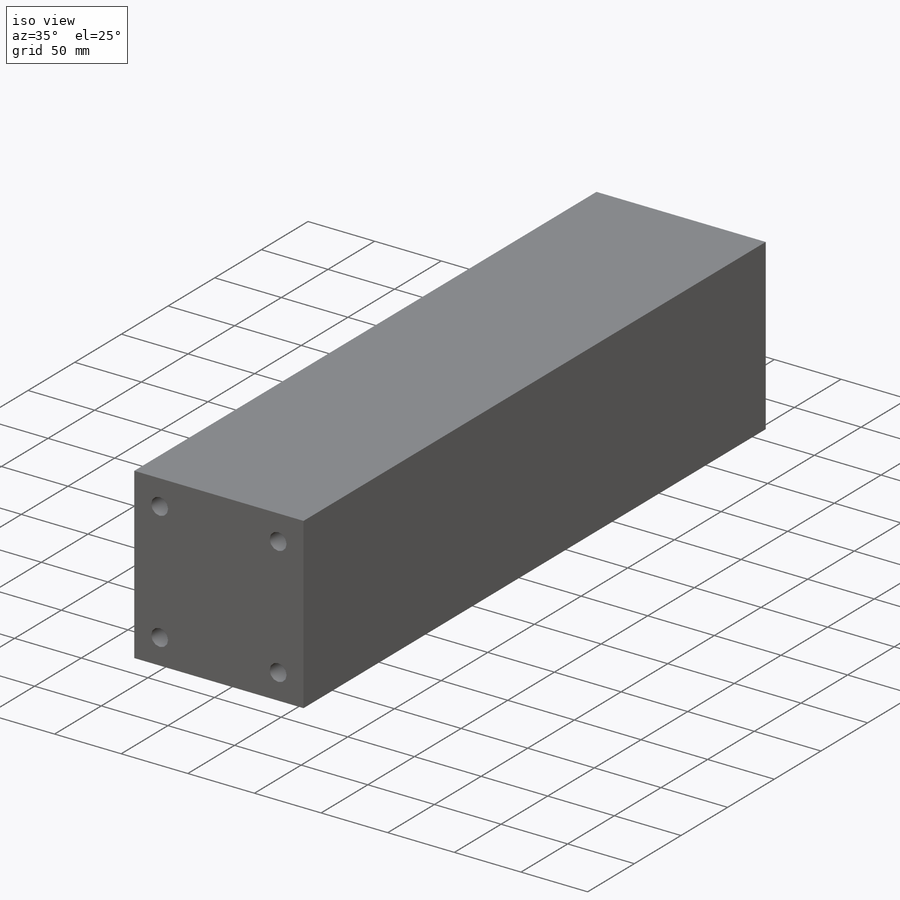
[diagram: iso view]
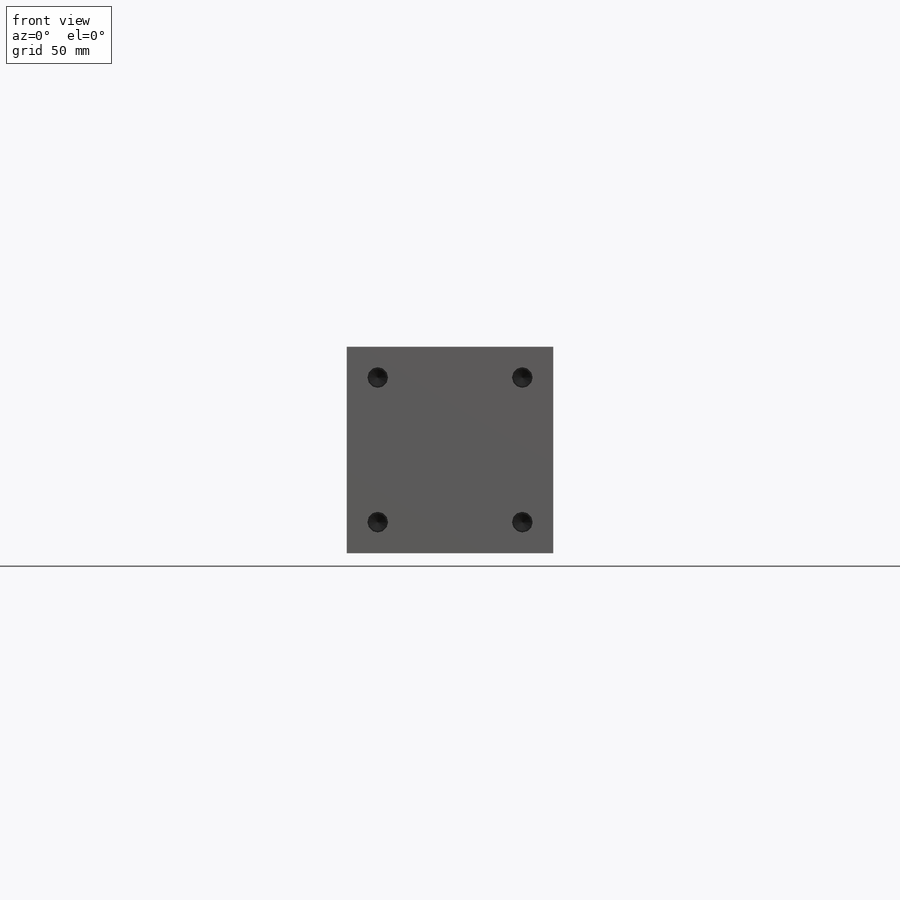
[diagram: front view]
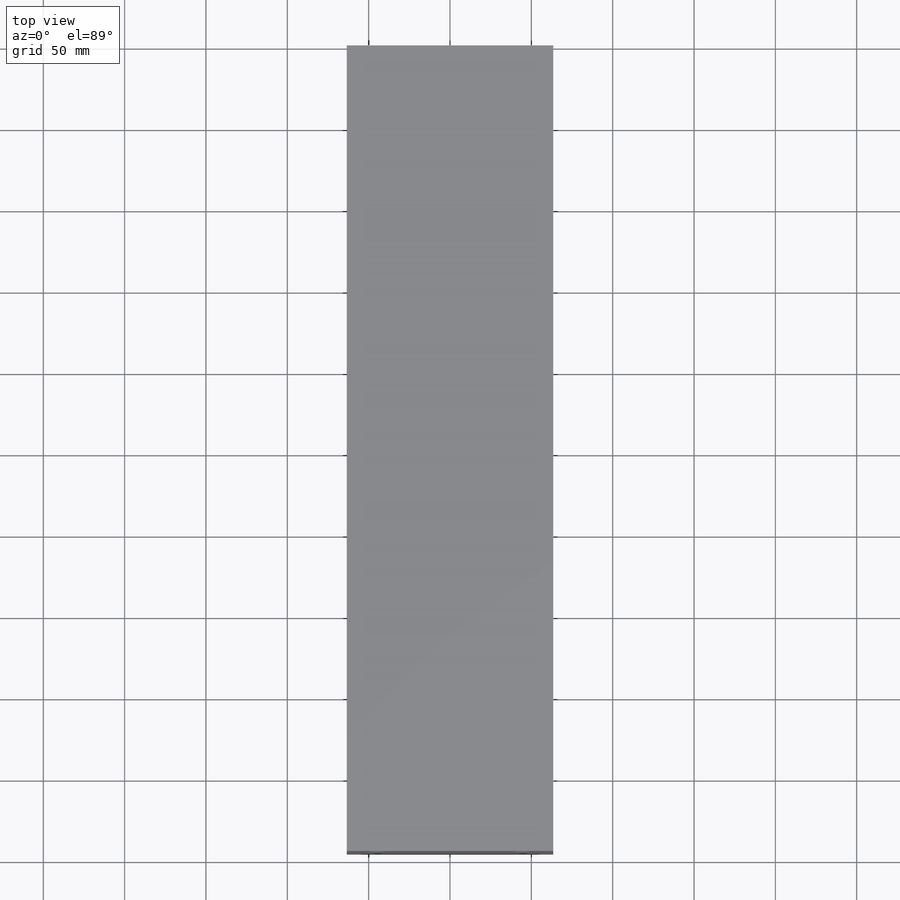
[diagram: top view]
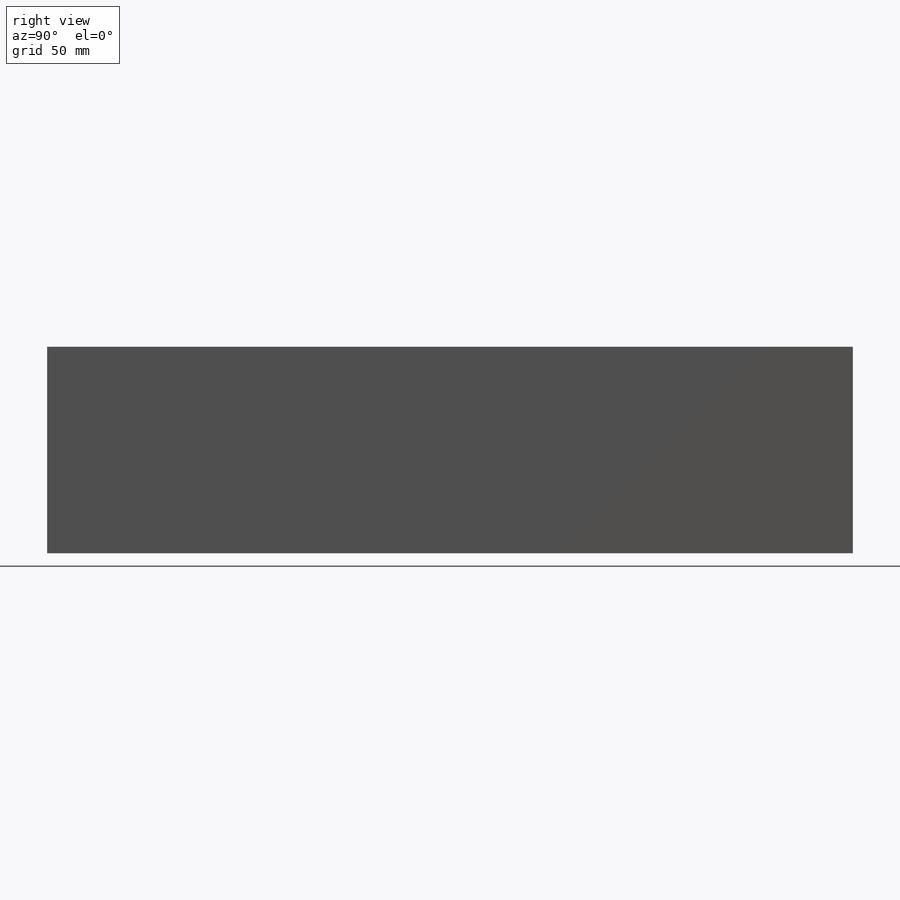
[diagram: right view]
SOLIDWORKS PART (.sldprt)
format: sldprt  version: not decoded by parser v0  size: 209,920 bytes
history: native  units: mm
features: sketch x5, hole x2, material x1, extrude x1 + 1 further entry (+10 scaffold rows collapsed)
feature tree (20):
  scaffold x10  (default folders/planes/origin — collapsed)
  material  "6061-T6 Al"
  "Origin"  ID=392984584
  sketch  "Sketch1"  dims[D1=127.0mm D2=127.0mm]
  extrude  "Boss-Extrude1"  Depth=495.3mm
  hole  "1/2-13 Tapped Hole1"  Diameter=10.71626mm Depth=31.2674mm
  sketch  "Sketch3"  dims[D1=88.9mm]
  sketch  "Sketch2"  dims[hole-wizard template sketch: 29 standard entries collapsed; hole parameters kept: c8.Tap Drill Depth=31.2674mm c8.Thread Major Dia.=12.7mm c8.Thread Depth=25.4mm c8.D5=~14.816244mm c8.Drill Angle=118.0deg]
  hole  "1/2-13 Tapped Hole2"  Diameter=10.71626mm Depth=31.2674mm
  sketch  "Sketch5"
  sketch  "Sketch4"  dims[hole-wizard template sketch: 29 standard entries collapsed; hole parameters kept: c8.Tap Drill Depth=31.2674mm c8.Thread Major Dia.=12.7mm c8.Thread Depth=25.4mm c8.D5=~14.816244mm c8.Drill Angle=118.0deg]
decode coverage: 7 of 8 modeling features carry decoded parameters; 1 rows unclassified (native names shown)
note: ~ marks probable driven/reference dimensions
note: suppression state not decoded; provenance and decode notes live in map.json
